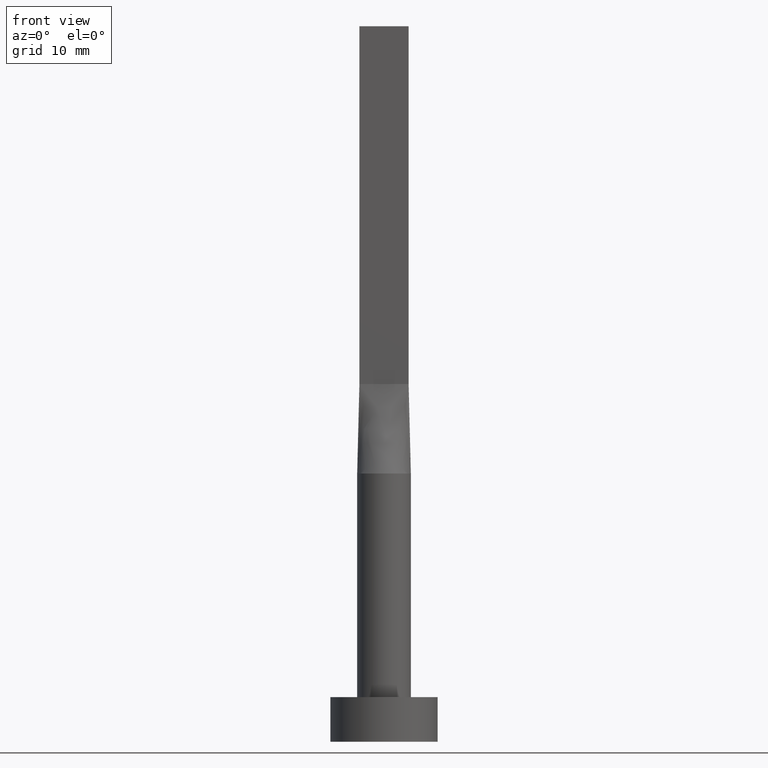
[diagram: clean part render]
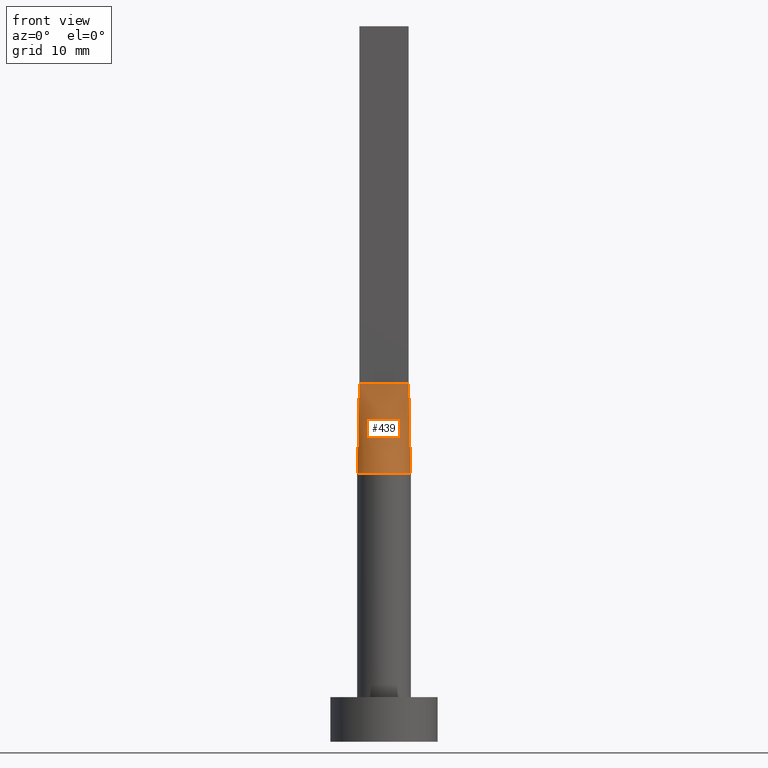
[diagram: same view with one face highlighted and labeled with its STEP entity id]
A machine part, front view. The second image highlights one B-rep face of the part: STEP entity #439.
In plain terms, the highlighted face is a freeform B-spline surface patch.
Its self-contained STEP definition (entity closure, byte-faithful):
#5 = CARTESIAN_POINT ( 'NONE',  ( -2.382399439808189356, -1.857547746650220599, 30.00000000000000711 ) ) ;
#9 = CARTESIAN_POINT ( 'NONE',  ( -2.850804865149861644, -0.5183281572999741682, 35.00000000000000000 ) ) ;
#11 = DIRECTION ( 'NONE',  ( 1.000000000000000000, 0.000000000000000000, 0.000000000000000000 ) ) ;
#14 = LINE ( 'NONE', #149, #41 ) ;
#15 = CARTESIAN_POINT ( 'NONE',  ( 2.951609730299722401, -0.5366563145999492246, 30.00000000000000355 ) ) ;
#23 = LINE ( 'NONE', #381, #494 ) ;
#31 = CARTESIAN_POINT ( 'NONE',  ( -2.567367750129864845, -1.580669302822274691, 30.00000000000001066 ) ) ;
#37 = CARTESIAN_POINT ( 'NONE',  ( -2.291666666666666519, -0.4999999999999994449, 39.99999999999999289 ) ) ;
#41 = VECTOR ( 'NONE', #497, 1000.000000000000114 ) ;
#43 = ORIENTED_EDGE ( 'NONE', *, *, #271, .T. ) ;
#52 = CARTESIAN_POINT ( 'NONE',  ( -1.833333333333333481, -0.4999999999999995559, 39.99999999999999289 ) ) ;
#59 = CARTESIAN_POINT ( 'NONE',  ( 0.000000000000000000, 0.000000000000000000, 30.00000000000000355 ) ) ;
#62 = AXIS2_PLACEMENT_3D ( 'NONE', #59, #298, #11 ) ;
#63 = CARTESIAN_POINT ( 'NONE',  ( 2.829409566978765334, -1.041313647073049742, 30.00000000000001066 ) ) ;
#79 = CARTESIAN_POINT ( 'NONE',  ( -2.750000000000000000, -0.4999999999999994449, 40.00000000000000000 ) ) ;
#95 = FACE_OUTER_BOUND ( 'NONE', #202, .T. ) ;
#96 = ORIENTED_EDGE ( 'NONE', *, *, #337, .T. ) ;
#116 = CARTESIAN_POINT ( 'NONE',  ( 2.520833333333333037, -0.4999999999999997780, 39.99999999999999289 ) ) ;
#140 = CARTESIAN_POINT ( 'NONE',  ( 1.566158656300001395, -2.589797565249319256, 30.00000000000000000 ) ) ;
#144 = EDGE_CURVE ( 'NONE', #578, #531, #23, .T. ) ;
#149 = CARTESIAN_POINT ( 'NONE',  ( 2.850804865149861200, -0.5183281572999745013, 35.00000000000000000 ) ) ;
#160 = CARTESIAN_POINT ( 'NONE',  ( -2.750000000000000000, -0.4999999999999994449, 40.00000000000000000 ) ) ;
#166 = ORIENTED_EDGE ( 'NONE', *, *, #412, .T. ) ;
#169 = CARTESIAN_POINT ( 'NONE',  ( -0.4583333333333340365, -0.4999999999999995559, 39.99999999999999289 ) ) ;
#187 = CARTESIAN_POINT ( 'NONE',  ( -0.2291666666666674346, -0.4999999999999995559, 40.00000000000000000 ) ) ;
#199 = CARTESIAN_POINT ( 'NONE',  ( 2.291666666666666075, -0.4999999999999997780, 39.99999999999999289 ) ) ;
#202 = EDGE_LOOP ( 'NONE', ( #166, #96, #518, #43 ) ) ;
#218 = CARTESIAN_POINT ( 'NONE',  ( 2.750000000000000000, -0.4999999999999997780, 40.00000000000000000 ) ) ;
#221 = CARTESIAN_POINT ( 'NONE',  ( -1.604166666666666963, -0.4999999999999995559, 39.99999999999999289 ) ) ;
#256 = CARTESIAN_POINT ( 'NONE',  ( -2.829409566978767110, -1.041313647073048854, 30.00000000000001421 ) ) ;
#271 = EDGE_CURVE ( 'NONE', #578, #485, #278, .T. ) ;
#273 = CARTESIAN_POINT ( 'NONE',  ( -1.145833333333333703, -0.4999999999999995559, 39.99999999999999289 ) ) ;
#278 = LINE ( 'NONE', #9, #416 ) ;
#290 = DIRECTION ( 'NONE',  ( 1.000000000000000000, -5.913830031739115543E-17, 0.000000000000000000 ) ) ;
#298 = DIRECTION ( 'NONE',  ( 0.000000000000000000, 0.000000000000000000, 1.000000000000000000 ) ) ;
#315 = DIRECTION ( 'NONE',  ( -0.02015674154923150635, -0.003664862099860238635, -0.9997901152521495582 ) ) ;
#316 = CARTESIAN_POINT ( 'NONE',  ( -1.882426928433514224, -2.362790634184934291, 30.00000000000000355 ) ) ;
#332 = CARTESIAN_POINT ( 'NONE',  ( 1.145833333333332371, -0.4999999999999996669, 39.99999999999999289 ) ) ;
#334 = VERTEX_POINT ( 'NONE', #362 ) ;
#337 = EDGE_CURVE ( 'NONE', #334, #531, #14, .T. ) ;
#350 = CARTESIAN_POINT ( 'NONE',  ( -2.907609730299723250, -0.7786563145999485513, 29.99999999999999645 ) ) ;
#362 = CARTESIAN_POINT ( 'NONE',  ( 2.951896064709005785, -0.5367080392066734262, 30.00000000000000355 ) ) ;
#379 = CARTESIAN_POINT ( 'NONE',  ( 2.750000000000000000, -0.4999999999999997780, 40.00000000000000000 ) ) ;
#381 = CARTESIAN_POINT ( 'NONE',  ( -2.750000000000000000, -0.4999999999999994449, 40.00000000000000000 ) ) ;
#403 = CARTESIAN_POINT ( 'NONE',  ( -2.951609730299722845, -0.5366563145999487805, 30.00000000000000355 ) ) ;
#408 = CARTESIAN_POINT ( 'NONE',  ( -0.4172881767044983592, -2.999999999999999556, 30.00000000000000355 ) ) ;
#412 = EDGE_CURVE ( 'NONE', #485, #334, #473, .T. ) ;
#416 = VECTOR ( 'NONE', #315, 1000.000000000000114 ) ;
#429 = CARTESIAN_POINT ( 'NONE',  ( 0.2291666666666659635, -0.4999999999999995559, 39.99999999999999289 ) ) ;
#439 = ADVANCED_FACE ( 'NONE', ( #95 ), #471, .T. ) ;
#442 = CARTESIAN_POINT ( 'NONE',  ( -1.566158656300002727, -2.589797565249318811, 30.00000000000000000 ) ) ;
#451 = CARTESIAN_POINT ( 'NONE',  ( 2.382399439808186692, -1.857547746650222154, 30.00000000000001066 ) ) ;
#471 = B_SPLINE_SURFACE_WITH_KNOTS ( 'NONE', 3, 1, ( 
 ( #403, #79 ),
 ( #350, #522 ),
 ( #256, #37 ),
 ( #31, #52 ),
 ( #5, #221 ),
 ( #316, #273 ),
 ( #442, #566 ),
 ( #490, #169 ),
 ( #408, #187 ),
 ( #520, #429 ),
 ( #543, #472 ),
 ( #140, #554 ),
 ( #498, #332 ),
 ( #451, #559 ),
 ( #544, #510 ),
 ( #63, #199 ),
 ( #503, #116 ),
 ( #15, #379 ) ),
 .UNSPECIFIED., .F., .F., .F.,
 ( 4, 2, 2, 2, 2, 2, 2, 2, 4 ),
 ( 2, 2 ),
 ( 0.000000000000000000, 0.1250000000000000000, 0.2500000000000000000, 0.3750000000000000000, 0.5000000000000000000, 0.6250000000000000000, 0.7500000000000000000, 0.8750000000000000000, 1.000000000000000000 ),
 ( 0.000000000000000000, 1.000000000000000000 ),
 .UNSPECIFIED. ) ;
#472 = CARTESIAN_POINT ( 'NONE',  ( 0.4583333333333325932, -0.4999999999999995559, 39.99999999999999289 ) ) ;
#473 = CIRCLE ( 'NONE', #62, 3.000000000000000444 ) ;
#485 = VERTEX_POINT ( 'NONE', #557 ) ;
#490 = CARTESIAN_POINT ( 'NONE',  ( -0.8331239790496242081, -2.909606296598777231, 30.00000000000000355 ) ) ;
#494 = VECTOR ( 'NONE', #290, 1000.000000000000000 ) ;
#497 = DIRECTION ( 'NONE',  ( -0.02015674154923146819, 0.003664862099860249911, 0.9997901152521495582 ) ) ;
#498 = CARTESIAN_POINT ( 'NONE',  ( 1.882426928433513114, -2.362790634184936511, 30.00000000000000711 ) ) ;
#503 = CARTESIAN_POINT ( 'NONE',  ( 2.907609730299723250, -0.7786563145999499946, 30.00000000000000355 ) ) ;
#510 = CARTESIAN_POINT ( 'NONE',  ( 1.833333333333332593, -0.4999999999999997780, 39.99999999999999289 ) ) ;
#518 = ORIENTED_EDGE ( 'NONE', *, *, #144, .F. ) ;
#520 = CARTESIAN_POINT ( 'NONE',  ( 0.4172881767044969714, -3.000000000000000444, 29.99999999999999645 ) ) ;
#522 = CARTESIAN_POINT ( 'NONE',  ( -2.520833333333333037, -0.4999999999999994449, 39.99999999999999289 ) ) ;
#531 = VERTEX_POINT ( 'NONE', #218 ) ;
#543 = CARTESIAN_POINT ( 'NONE',  ( 0.8331239790496235420, -2.909606296598777231, 30.00000000000000000 ) ) ;
#544 = CARTESIAN_POINT ( 'NONE',  ( 2.567367750129864401, -1.580669302822276023, 30.00000000000001421 ) ) ;
#554 = CARTESIAN_POINT ( 'NONE',  ( 0.9166666666666658525, -0.4999999999999995559, 39.99999999999999289 ) ) ;
#557 = CARTESIAN_POINT ( 'NONE',  ( -2.951885853416577277, -0.5367063210726346068, 30.00000000000000355 ) ) ;
#559 = CARTESIAN_POINT ( 'NONE',  ( 1.604166666666666075, -0.4999999999999997780, 39.99999999999999289 ) ) ;
#566 = CARTESIAN_POINT ( 'NONE',  ( -0.9166666666666671848, -0.4999999999999995559, 39.99999999999999289 ) ) ;
#578 = VERTEX_POINT ( 'NONE', #160 ) ;